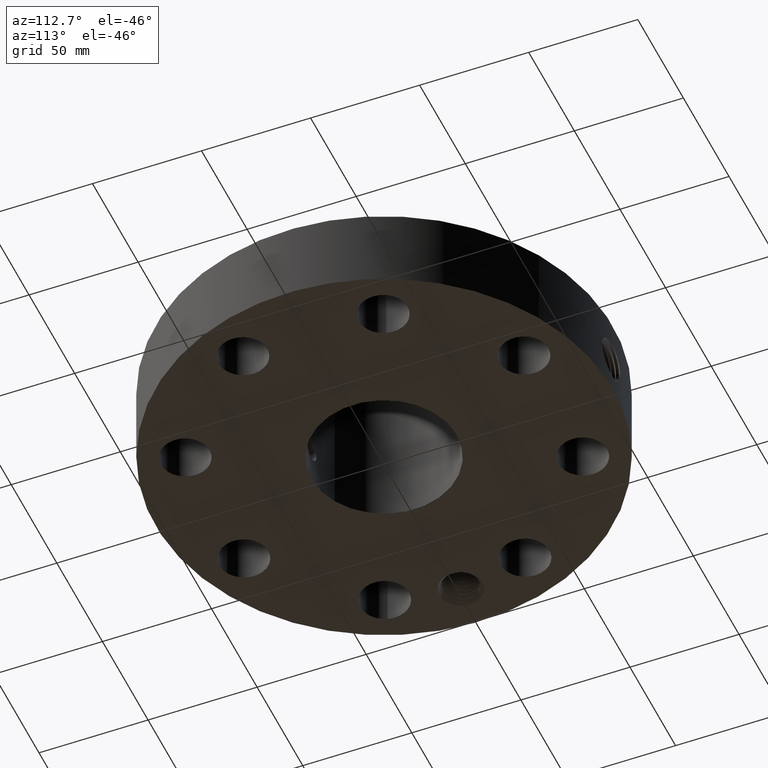
[diagram: clean part render]
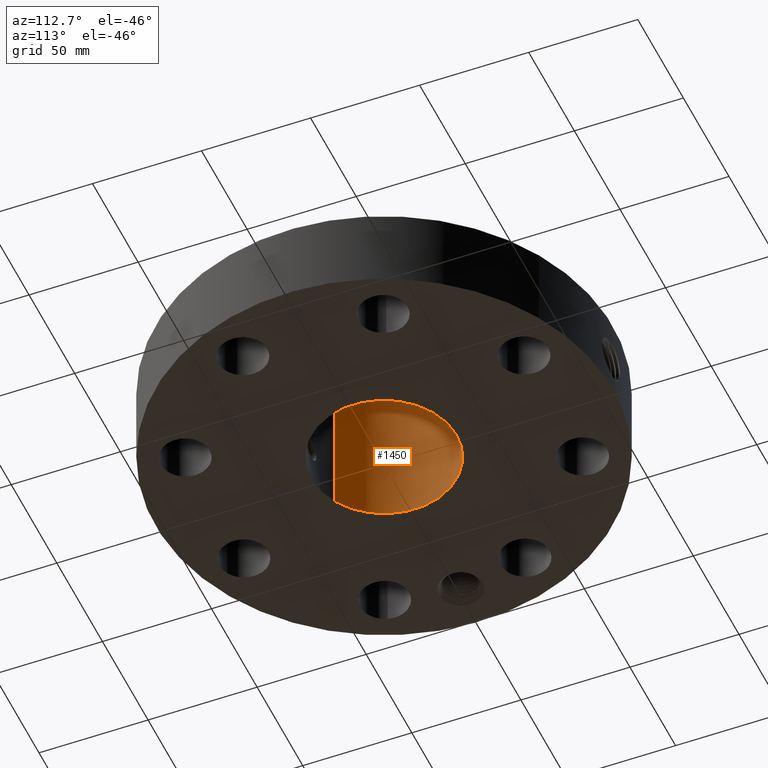
[diagram: same view with one face highlighted and labeled with its STEP entity id]
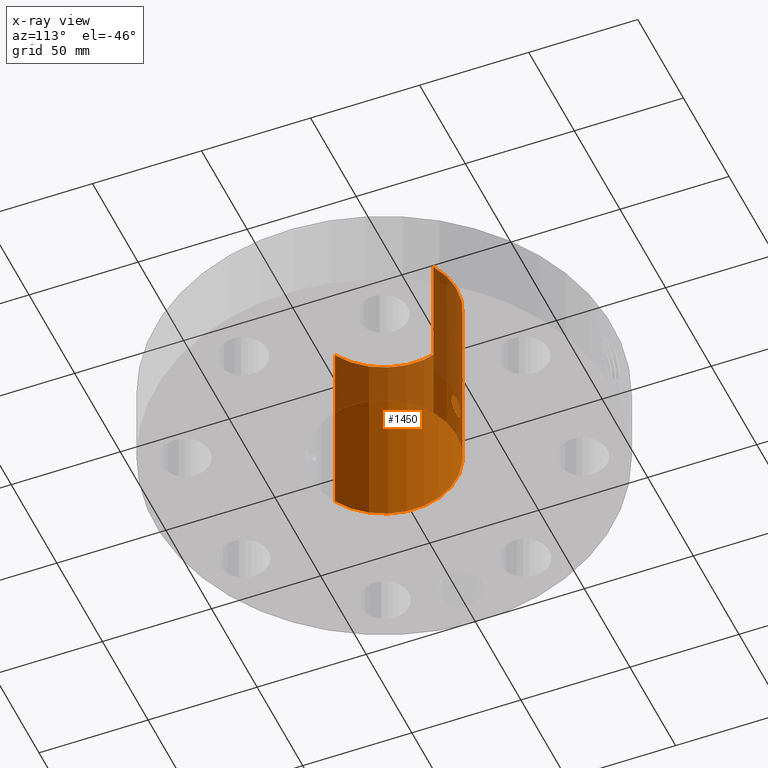
[diagram: x-ray of the same camera — body ghosted, the highlighted face saturated]
A machine part, auxiliary view. The second image highlights one B-rep face of the part: STEP entity #1450.
The next image is the same camera in x-ray: the body ghosted, the highlighted face saturated — about 35% of this face is hidden behind the body in this view.
In plain terms, the highlighted cylindrical surface (partial cylindrical patch) has radius 33.3248 mm, axis along (0, 0, -1).
Its self-contained STEP definition (entity closure, byte-faithful):
#251=AXIS2_PLACEMENT_3D('Circle Axis2P3D',#249,#250,$) ;
#1327=AXIS2_PLACEMENT_3D('Cylinder Axis2P3D',#1324,#1325,#1326) ;
#1399=AXIS2_PLACEMENT_3D('Circle Axis2P3D',#1397,#1398,$) ;
#244=CARTESIAN_POINT('Vertex',(0.629006306651,1.1513883212,0.250000000001)) ;
#246=CARTESIAN_POINT('Vertex',(-0.629006306651,-1.1513883212,0.250000000001)) ;
#249=CARTESIAN_POINT('Axis2P3D Location',(0.,0.,0.250000000001)) ;
#1324=CARTESIAN_POINT('Axis2P3D Location',(0.,0.,2.00000000001)) ;
#1333=CARTESIAN_POINT('Vertex',(0.629006306651,1.1513883212,3.75000000001)) ;
#1335=CARTESIAN_POINT('Vertex',(-0.629006306651,-1.1513883212,3.75000000001)) ;
#1338=CARTESIAN_POINT('Line Origine',(0.629006306651,1.1513883212,2.00000000001)) ;
#1343=CARTESIAN_POINT('Line Origine',(-0.629006306651,-1.1513883212,2.00000000001)) ;
#1397=CARTESIAN_POINT('Axis2P3D Location',(0.,0.,3.75000000001)) ;
#1409=CARTESIAN_POINT('Control Point',(0.164546730355,1.30164064685,1.02989228849)) ;
#1410=CARTESIAN_POINT('Control Point',(0.153731230616,1.30300788682,1.04968992797)) ;
#1411=CARTESIAN_POINT('Control Point',(0.139945864766,1.30463643262,1.06784704743)) ;
#1412=CARTESIAN_POINT('Control Point',(0.123515369153,1.30636024152,1.08378407901)) ;
#1413=CARTESIAN_POINT('Control Point',(0.0771782829313,1.31033077773,1.11678341445)) ;
#1414=CARTESIAN_POINT('Control Point',(0.0211916700909,1.31250992993,1.13098794462)) ;
#1415=CARTESIAN_POINT('Control Point',(-0.0138299903176,1.31261786808,1.13166404998)) ;
#1416=CARTESIAN_POINT('Control Point',(-0.0703534485029,1.31073926324,1.11961413117)) ;
#1417=CARTESIAN_POINT('Control Point',(-0.117943032824,1.30688680766,1.08839439252)) ;
#1418=CARTESIAN_POINT('Control Point',(-0.13498317884,1.30517113913,1.07308047496)) ;
#1419=CARTESIAN_POINT('Control Point',(-0.174384892624,1.30065332861,1.02508216851)) ;
#1420=CARTESIAN_POINT('Control Point',(-0.192224879746,1.29783605603,0.964095765029)) ;
#1421=CARTESIAN_POINT('Control Point',(-0.193004822577,1.29770414,0.923219098465)) ;
#1422=CARTESIAN_POINT('Control Point',(-0.183186280206,1.29928433062,0.884227178655)) ;
#1423=CARTESIAN_POINT('Control Point',(-0.164546730355,1.30164064685,0.850107711515)) ;
#1424=CARTESIAN_POINT('Vertex',(0.164546730355,1.30164064685,1.02989228849)) ;
#1426=CARTESIAN_POINT('Vertex',(-0.164546730355,1.30164064685,0.850107711515)) ;
#1430=CARTESIAN_POINT('Control Point',(-0.164546730355,1.30164064685,0.850107711515)) ;
#1431=CARTESIAN_POINT('Control Point',(-0.153731230618,1.30300788682,0.830310072043)) ;
#1432=CARTESIAN_POINT('Control Point',(-0.139945864771,1.30463643262,0.812152952586)) ;
#1433=CARTESIAN_POINT('Control Point',(-0.123515369145,1.30636024152,0.796215920993)) ;
#1434=CARTESIAN_POINT('Control Point',(-0.0771782829279,1.31033077773,0.763216585556)) ;
#1435=CARTESIAN_POINT('Control Point',(-0.0211916700953,1.31250992993,0.749012055391)) ;
#1436=CARTESIAN_POINT('Control Point',(0.0138299903244,1.31261786808,0.748335950032)) ;
#1437=CARTESIAN_POINT('Control Point',(0.0703534485066,1.31073926324,0.760385868837)) ;
#1438=CARTESIAN_POINT('Control Point',(0.117943032825,1.30688680766,0.791605607484)) ;
#1439=CARTESIAN_POINT('Control Point',(0.134983178841,1.30517113913,0.806919525048)) ;
#1440=CARTESIAN_POINT('Control Point',(0.174384892617,1.30065332861,0.85491783149)) ;
#1441=CARTESIAN_POINT('Control Point',(0.19222487974,1.29783605604,0.915904234957)) ;
#1442=CARTESIAN_POINT('Control Point',(0.193004822572,1.29770414,0.956780901566)) ;
#1443=CARTESIAN_POINT('Control Point',(0.1831862802,1.29928433062,0.995772821362)) ;
#1444=CARTESIAN_POINT('Control Point',(0.164546730355,1.30164064685,1.02989228849)) ;
#250=DIRECTION('Axis2P3D Direction',(0.,0.,-0.0393700787402)) ;
#1325=DIRECTION('Axis2P3D Direction',(0.,0.,-0.0393700787402)) ;
#1326=DIRECTION('Axis2P3D XDirection',(-0.0188750212049,-0.0345504945626,0.)) ;
#1339=DIRECTION('Vector Direction',(0.,0.,-0.0393700787402)) ;
#1344=DIRECTION('Vector Direction',(0.,0.,-0.0393700787402)) ;
#1398=DIRECTION('Axis2P3D Direction',(0.,0.,-0.0393700787402)) ;
#1340=VECTOR('Line Direction',#1339,0.0393700787402) ;
#1345=VECTOR('Line Direction',#1344,0.0393700787402) ;
#1403=ORIENTED_EDGE('',*,*,#1401,.F.) ;
#1404=ORIENTED_EDGE('',*,*,#1347,.T.) ;
#1405=ORIENTED_EDGE('',*,*,#253,.T.) ;
#1406=ORIENTED_EDGE('',*,*,#1342,.F.) ;
#1447=ORIENTED_EDGE('',*,*,#1428,.F.) ;
#1448=ORIENTED_EDGE('',*,*,#1445,.F.) ;
#1449=FACE_BOUND('',#1446,.T.) ;
#1450=ADVANCED_FACE('PartBody',(#1407,#1449),#1328,.F.) ;
#1408=B_SPLINE_CURVE_WITH_KNOTS('',5,(#1409,#1410,#1411,#1412,#1413,#1414,#1415,#1416,#1417,#1418,#1419,#1420,#1421,#1422,#1423),.UNSPECIFIED.,.F.,.U.,(6,3,3,3,6),(0.,4.05919858207,10.1275934444,14.1901615067,21.1858284801),.UNSPECIFIED.) ;
#1429=B_SPLINE_CURVE_WITH_KNOTS('',5,(#1430,#1431,#1432,#1433,#1434,#1435,#1436,#1437,#1438,#1439,#1440,#1441,#1442,#1443,#1444),.UNSPECIFIED.,.F.,.U.,(6,3,3,3,6),(0.,4.05919858128,10.1275934431,14.1901615054,21.1858284768),.UNSPECIFIED.) ;
#252=CIRCLE('generated circle',#251,1.31200000001) ;
#1400=CIRCLE('generated circle',#1399,1.31200000001) ;
#1328=CYLINDRICAL_SURFACE('generated cylinder',#1327,1.31200000001) ;
#253=EDGE_CURVE('',#247,#245,#252,.T.) ;
#1342=EDGE_CURVE('',#1334,#245,#1341,.T.) ;
#1347=EDGE_CURVE('',#1336,#247,#1346,.T.) ;
#1401=EDGE_CURVE('',#1336,#1334,#1400,.T.) ;
#1428=EDGE_CURVE('',#1425,#1427,#1408,.T.) ;
#1445=EDGE_CURVE('',#1427,#1425,#1429,.T.) ;
#1402=EDGE_LOOP('',(#1403,#1404,#1405,#1406)) ;
#1446=EDGE_LOOP('',(#1447,#1448)) ;
#1407=FACE_OUTER_BOUND('',#1402,.T.) ;
#1341=LINE('Line',#1338,#1340) ;
#1346=LINE('Line',#1343,#1345) ;
#245=VERTEX_POINT('',#244) ;
#247=VERTEX_POINT('',#246) ;
#1334=VERTEX_POINT('',#1333) ;
#1336=VERTEX_POINT('',#1335) ;
#1425=VERTEX_POINT('',#1424) ;
#1427=VERTEX_POINT('',#1426) ;